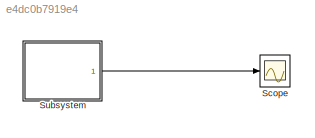
MODEL slx_e4dc0b7919e4
KIND model
CONFIG AbsTol = auto
CONFIG FixedStep = auto
CONFIG MaxStep = 0.001
CONFIG MinStep = 0.001
CONFIG RelTol = 1e-3
CONFIG SampleTimeConstraint = Unconstrained
CONFIG Solver = VariableStepAuto
CONFIG SolverMode = Auto
CONFIG SolverName = VariableStepAuto
CONFIG StartTime = 0.0
CONFIG StopTime = 10.0
BLOCK [Scope] Scope
  Ports = [1]
  ScopeSpecificationString = C++SS(StrPVP('SaveName','ScopeData'))
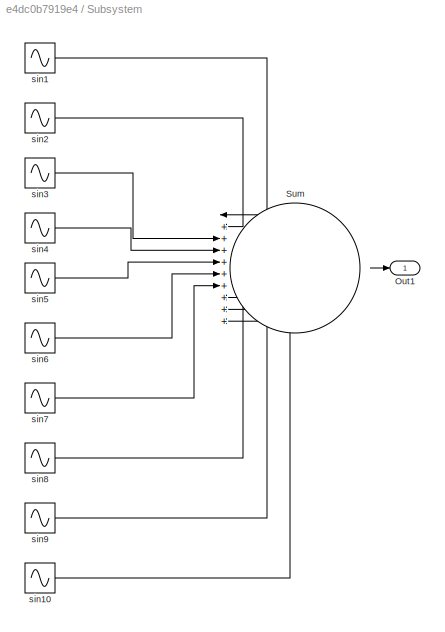
BLOCK [SubSystem] Subsystem
  Ports = [0, 1]
  RequestExecContextInheritance = off
  Variant = off
BLOCK [Outport] Subsystem/Out1
  IconDisplay = Port number
BLOCK [Sum] Subsystem/Sum
  IconShape = round
  InputSameDT = off
  Inputs = |++++++++++
  OutDataTypeStr = Inherit: Inherit via internal rule
  Ports = [10, 1]
  SaturateOnIntegerOverflow = off
BLOCK [Sin] Subsystem/sin1
  Ports = [0, 1]
  SampleTime = 0
BLOCK [Sin] Subsystem/sin10
  Amplitude = 1/19
  Frequency = 19
  Ports = [0, 1]
  SampleTime = 0
BLOCK [Sin] Subsystem/sin2
  Amplitude = 1/3
  Frequency = 3
  Ports = [0, 1]
  SampleTime = 0
BLOCK [Sin] Subsystem/sin3
  Amplitude = 1/5
  Frequency = 5
  Ports = [0, 1]
  SampleTime = 0
BLOCK [Sin] Subsystem/sin4
  Amplitude = 1/7
  Frequency = 7
  Ports = [0, 1]
  SampleTime = 0
BLOCK [Sin] Subsystem/sin5
  Amplitude = 1/9
  Frequency = 9
  Ports = [0, 1]
  SampleTime = 0
BLOCK [Sin] Subsystem/sin6
  Amplitude = 1/11
  Frequency = 11
  Ports = [0, 1]
  SampleTime = 0
BLOCK [Sin] Subsystem/sin7
  Amplitude = 1/13
  Frequency = 13
  Ports = [0, 1]
  SampleTime = 0
BLOCK [Sin] Subsystem/sin8
  Amplitude = 1/15
  Frequency = 15
  Ports = [0, 1]
  SampleTime = 0
BLOCK [Sin] Subsystem/sin9
  Amplitude = 1/17
  Frequency = 17
  Ports = [0, 1]
  SampleTime = 0
LINE Subsystem/Sum:1 -> Subsystem/Out1:1
LINE Subsystem/sin10:1 -> Subsystem/Sum:10
LINE Subsystem/sin1:1 -> Subsystem/Sum:1
LINE Subsystem/sin2:1 -> Subsystem/Sum:2
LINE Subsystem/sin3:1 -> Subsystem/Sum:3
LINE Subsystem/sin4:1 -> Subsystem/Sum:4
LINE Subsystem/sin5:1 -> Subsystem/Sum:5
LINE Subsystem/sin6:1 -> Subsystem/Sum:6
LINE Subsystem/sin7:1 -> Subsystem/Sum:7
LINE Subsystem/sin8:1 -> Subsystem/Sum:8
LINE Subsystem/sin9:1 -> Subsystem/Sum:9
LINE Subsystem:1 -> Scope:1
